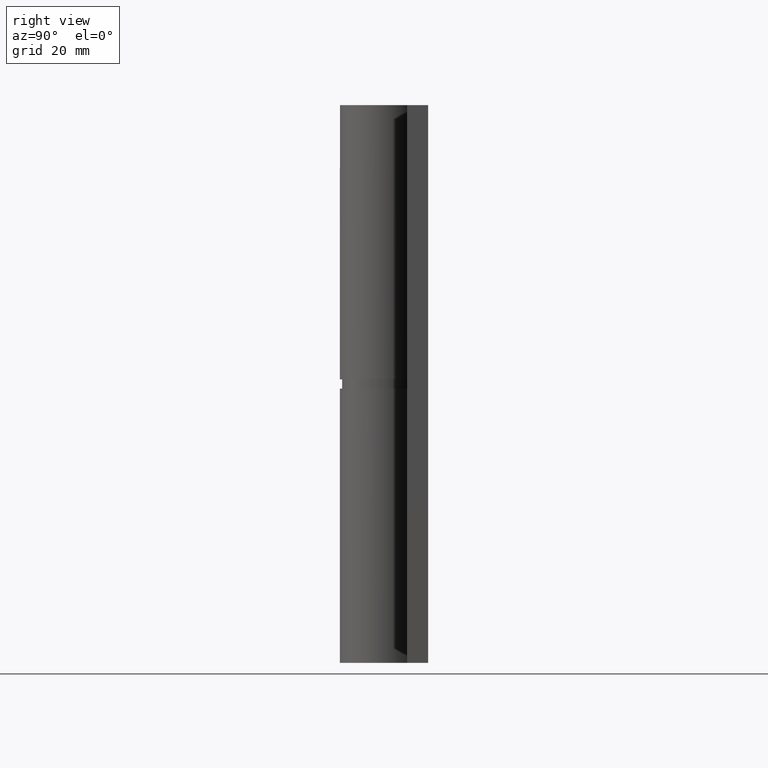
[diagram: clean part render]
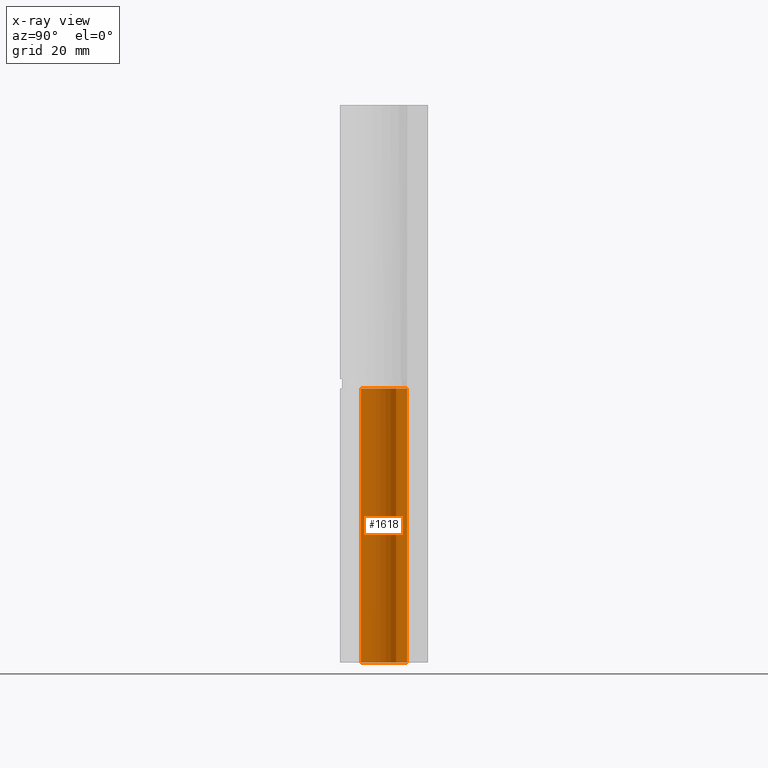
[diagram: x-ray — body ghosted, one internal face saturated and labeled with its STEP entity id]
A machine part, right view, then the same camera in x-ray: the body is ghosted and one INTERNAL B-rep face — a face not visible from any outside direction — is saturated and labeled: STEP entity #1618.
In plain terms, the highlighted face is a freeform B-spline surface patch.
Its self-contained STEP definition (entity closure, byte-faithful):
#1314=CARTESIAN_POINT('',(0.0,5.0,59.0));
#1315=VERTEX_POINT('',#1314);
#1350=CARTESIAN_POINT('',(4.267622743181081,2.605263157894730,59.0));
#1351=VERTEX_POINT('',#1350);
#1357=CARTESIAN_POINT('',(4.267622743181078,2.605263157894728,59.0));
#1358=CARTESIAN_POINT('',(6.279409924410269,-0.690199990631003,59.000000000000007));
#1359=CARTESIAN_POINT('',(3.599859763297242,-3.470015804660481,59.0));
#1360=CARTESIAN_POINT('',(0.920309602184216,-6.249831618689957,59.000000000000007));
#1361=CARTESIAN_POINT('',(-2.446802424647968,-4.360407996361903,59.0));
#1362=CARTESIAN_POINT('',(-5.813914451480155,-2.470984374033846,59.000000000000007));
#1363=CARTESIAN_POINT('',(-4.837460076414559,1.264507812983078,59.0));
#1364=CARTESIAN_POINT('',(-3.861005701348963,5.000000000000001,59.000000000000007));
#1365=CARTESIAN_POINT('',(0.0,5.0,59.0));
#1373=(BOUNDED_CURVE()B_SPLINE_CURVE(2,(#1357,#1358,#1359,#1360,#1361,#1362,#1363,#1364,#1365),.UNSPECIFIED.,.F.,.U.)B_SPLINE_CURVE_WITH_KNOTS((3,2,2,2,3),(0.0,0.250000000000000,0.500000000000000,0.750000000000000,1.0),.UNSPECIFIED.)CURVE()GEOMETRIC_REPRESENTATION_ITEM()RATIONAL_B_SPLINE_CURVE((1.0,0.791486437848626,1.0,0.791486437848626,1.0,0.791486437848626,1.0,0.791486437848626,1.0))REPRESENTATION_ITEM(''));
#1374=EDGE_CURVE('',#1351,#1315,#1373,.T.);
#1412=CARTESIAN_POINT('',(4.267622743181081,2.605263157894730,0.0));
#1413=VERTEX_POINT('',#1412);
#1414=CARTESIAN_POINT('',(0.0,5.0,0.0));
#1415=VERTEX_POINT('',#1414);
#1416=CARTESIAN_POINT('',(4.267622743181078,2.605263157894728,0.0));
#1417=CARTESIAN_POINT('',(6.279409924410268,-0.690199990631001,0.0));
#1418=CARTESIAN_POINT('',(3.599859763297245,-3.470015804660478,0.0));
#1419=CARTESIAN_POINT('',(0.920309602184222,-6.249831618689957,0.0));
#1420=CARTESIAN_POINT('',(-2.446802424647964,-4.360407996361905,0.0));
#1421=CARTESIAN_POINT('',(-5.813914451480154,-2.470984374033851,0.0));
#1422=CARTESIAN_POINT('',(-4.837460076414559,1.264507812983077,0.0));
#1423=CARTESIAN_POINT('',(-3.861005701348966,4.999999999999999,0.0));
#1424=CARTESIAN_POINT('',(0.0,5.0,0.0));
#1432=(BOUNDED_CURVE()B_SPLINE_CURVE(2,(#1416,#1417,#1418,#1419,#1420,#1421,#1422,#1423,#1424),.UNSPECIFIED.,.F.,.U.)B_SPLINE_CURVE_WITH_KNOTS((3,2,2,2,3),(0.0,0.250000000000000,0.500000000000000,0.750000000000000,1.0),.UNSPECIFIED.)CURVE()GEOMETRIC_REPRESENTATION_ITEM()RATIONAL_B_SPLINE_CURVE((1.0,0.791486437848627,1.0,0.791486437848627,1.0,0.791486437848627,1.0,0.791486437848627,1.0))REPRESENTATION_ITEM(''));
#1433=EDGE_CURVE('',#1413,#1415,#1432,.T.);
#1497=CARTESIAN_POINT('',(4.267622743181081,2.605263157894730,0.0));
#1498=CARTESIAN_POINT('',(4.267622743181081,2.605263157894730,59.0));
#1499=QUASI_UNIFORM_CURVE('',1,(#1497,#1498),.UNSPECIFIED.,.F.,.U.);
#1500=EDGE_CURVE('',#1413,#1351,#1499,.T.);
#1579=CARTESIAN_POINT('',(0.0,5.0,0.0));
#1580=CARTESIAN_POINT('',(0.0,5.0,59.0));
#1581=QUASI_UNIFORM_CURVE('',1,(#1579,#1580),.UNSPECIFIED.,.F.,.U.);
#1582=EDGE_CURVE('',#1415,#1315,#1581,.T.);
#1590=CARTESIAN_POINT('',(4.244725323753771,2.642405518818682,-1.475000000000001));
#1591=CARTESIAN_POINT('',(4.244725323753771,2.642405518818682,60.511875000000011));
#1592=CARTESIAN_POINT('',(7.488485745152353,-2.568328377565358,-1.475000000000001));
#1593=CARTESIAN_POINT('',(7.488485745152353,-2.568328377565358,60.511875000000018));
#1594=CARTESIAN_POINT('',(1.729457013570803,-4.691372766921292,-1.475000000000001));
#1595=CARTESIAN_POINT('',(1.729457013570803,-4.691372766921292,60.511875000000011));
#1596=CARTESIAN_POINT('',(-4.029571718010746,-6.814417156277226,-1.475000000000001));
#1597=CARTESIAN_POINT('',(-4.029571718010746,-6.814417156277226,60.511875000000018));
#1598=CARTESIAN_POINT('',(-4.944178521227578,-0.745049495155767,-1.475000000000001));
#1599=CARTESIAN_POINT('',(-4.944178521227578,-0.745049495155767,60.511875000000011));
#1600=CARTESIAN_POINT('',(-5.858785324444409,5.324318165965692,-1.475000000000001));
#1601=CARTESIAN_POINT('',(-5.858785324444409,5.324318165965692,60.511875000000018));
#1602=CARTESIAN_POINT('',(0.270142541906885,4.992696967276510,-1.475000000000001));
#1603=CARTESIAN_POINT('',(0.270142541906885,4.992696967276510,60.511875000000011));
#1611=(BOUNDED_SURFACE()B_SPLINE_SURFACE(1,2,((#1590,#1592,#1594,#1596,#1598,#1600,#1602),(#1591,#1593,#1595,#1597,#1599,#1601,#1603)),.UNSPECIFIED.,.F.,.F.,.U.)B_SPLINE_SURFACE_WITH_KNOTS((2,2),(3,2,2,3),(0.0,61.986875000000012),(0.0,9.503828690329577,19.007657380659150,28.511486070988731),.UNSPECIFIED.)GEOMETRIC_REPRESENTATION_ITEM()RATIONAL_B_SPLINE_SURFACE(((1.0,0.631578351302498,1.0,0.631578351302498,1.0,0.631578351302498,1.0),(1.0,0.631578351302498,1.0,0.631578351302498,1.0,0.631578351302498,1.0)))REPRESENTATION_ITEM('')SURFACE());
#1612=ORIENTED_EDGE('',*,*,#1374,.F.);
#1613=ORIENTED_EDGE('',*,*,#1500,.F.);
#1614=ORIENTED_EDGE('',*,*,#1433,.T.);
#1615=ORIENTED_EDGE('',*,*,#1582,.T.);
#1616=EDGE_LOOP('',(#1612,#1613,#1614,#1615));
#1617=FACE_OUTER_BOUND('',#1616,.T.);
#1618=ADVANCED_FACE('',(#1617),#1611,.F.);